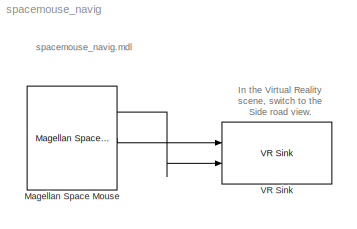
MODEL spacemouse_navig
KIND model
CONFIG AbsTol = auto
CONFIG FixedStep = auto
CONFIG MaxStep = auto
CONFIG MinStep = auto
CONFIG RelTol = 1e-3
CONFIG Solver = ode45
CONFIG SolverMode = Auto
CONFIG StartTime = 0.0
CONFIG StopTime = inf
BLOCK [Reference] Magellan Space Mouse  REF=vrlib/Magellan Space Mouse
  Dominant = off
  InitialPosition = [5 1 -5]
  InitialRotation = [0 0 1 0]
  NormalizeAngle = off
  OutputType = Viewpoint coordinates
  Port = COM1
  Ports = [0, 3]
  PositionSensitivity = 0.0001
  RotationSensitivity = 0.00001
  SourceBlock = vrlib/Magellan Space Mouse
  SourceType = Magellan Space Mouse
BLOCK [Reference] VR Sink  REF=vrlib/VR Sink
  FieldsWritten = View_2.orientation#View_2.position
  Ports = [2]
  RemoteChange = off
  RemoteView = off
  SampleTime = 0.1
  SourceBlock = vrlib/VR Sink
  SourceType = Virtual Reality Sink
  ViewEnable = on
  WorldDescription = Skoda Octavia on UCLA Pearlblossom Highway
  WorldFileName = blossom_skoda.wrl
LINE Magellan Space Mouse:1 -> VR Sink:2
LINE Magellan Space Mouse:2 -> VR Sink:1
